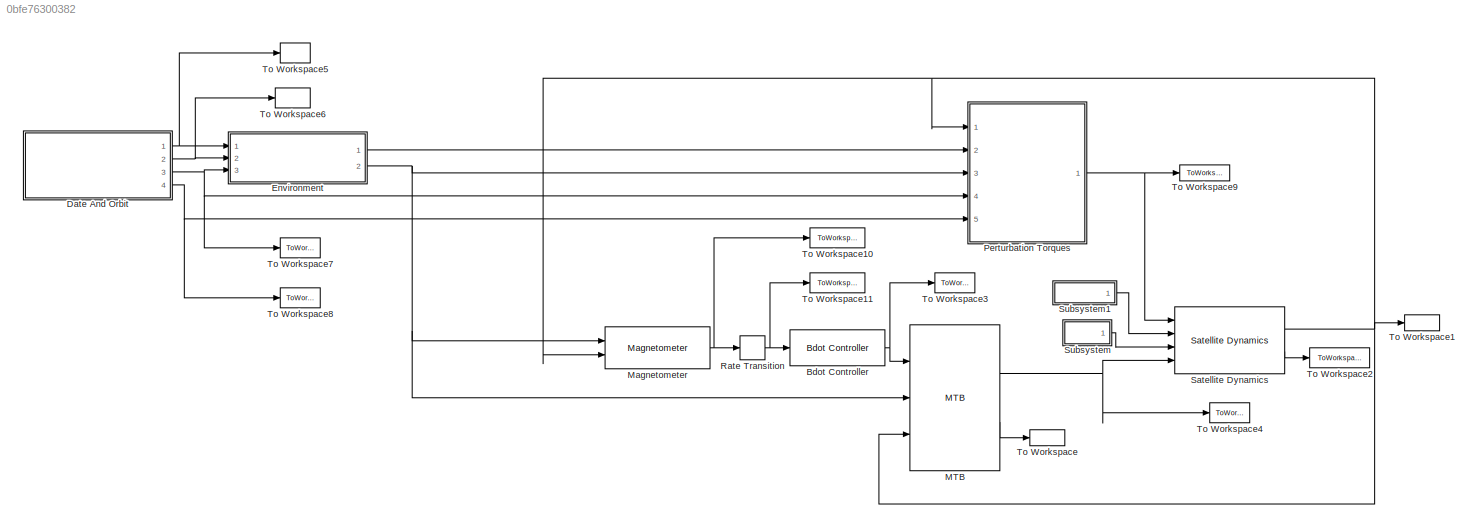
MODEL slx_0bfe76300382
KIND model
BLOCK [Reference] Bdot Controller  REF=BdotController/Bdot Controller
  Ports = [1, 1]
  SourceBlock = BdotController/Bdot Controller
  SourceType = SubSystem
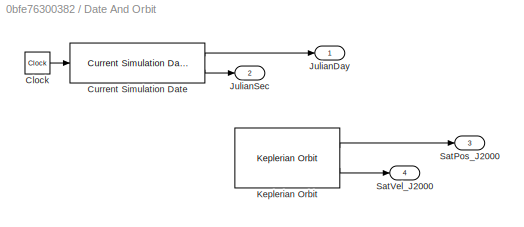
BLOCK [SubSystem] Date And Orbit
  Ports = [0, 4]
  RequestExecContextInheritance = off
BLOCK [Clock] Date And Orbit/Clock
  Decimation = 1/ConfParam.confOrbit.dt
BLOCK [Reference] Date And Orbit/Current Simulation Date  REF=Date/Current Simulation Date
  Ports = [1, 2]
  SourceBlock = Date/Current Simulation Date
  SourceType = SubSystem
BLOCK [Outport] Date And Orbit/JulianDay
  IconDisplay = Port number
BLOCK [Outport] Date And Orbit/JulianSec
  IconDisplay = Port number
  Port = 2
BLOCK [Reference] Date And Orbit/Keplerian Orbit  REF=KepOrbit/Keplerian Orbit
  Ports = [0, 2]
  SourceBlock = KepOrbit/Keplerian Orbit
  SourceType = SubSystem
BLOCK [Outport] Date And Orbit/SatPos_J2000
  IconDisplay = Port number
  Port = 3
BLOCK [Outport] Date And Orbit/SatVel_J2000
  IconDisplay = Port number
  Port = 4
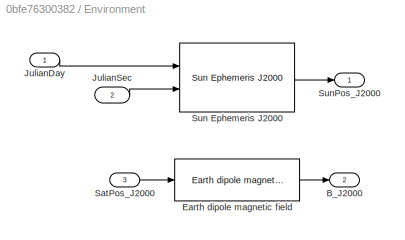
BLOCK [SubSystem] Environment
  Ports = [3, 2]
  RequestExecContextInheritance = off
BLOCK [Outport] Environment/B_J2000
  IconDisplay = Port number
  Port = 2
BLOCK [Reference] Environment/Earth dipole magnetic field  REF=DipoleField/Earth dipole magnetic field
  Ports = [1, 1]
  SourceBlock = DipoleField/Earth dipole magnetic field
  SourceType = SubSystem
BLOCK [Inport] Environment/JulianDay
  IconDisplay = Port number
BLOCK [Inport] Environment/JulianSec
  IconDisplay = Port number
  Port = 2
BLOCK [Inport] Environment/SatPos_J2000
  IconDisplay = Port number
  Port = 3
BLOCK [Reference] Environment/Sun Ephemeris J2000  REF=SunEphemeris_MathWorks/Sun Ephemeris J2000
  Ports = [2, 1]
  SourceBlock = SunEphemeris_MathWorks/Sun Ephemeris J2000
  SourceType = SubSystem
BLOCK [Outport] Environment/SunPos_J2000
  IconDisplay = Port number
BLOCK [Reference] MTB  REF=MTB/MTB
  Ports = [3, 2]
  SourceBlock = MTB/MTB
  SourceType = SubSystem
BLOCK [Reference] Magnetometer  REF=Magnetometer/Magnetometer
  Ports = [2, 1]
  SourceBlock = Magnetometer/Magnetometer
  SourceType = SubSystem
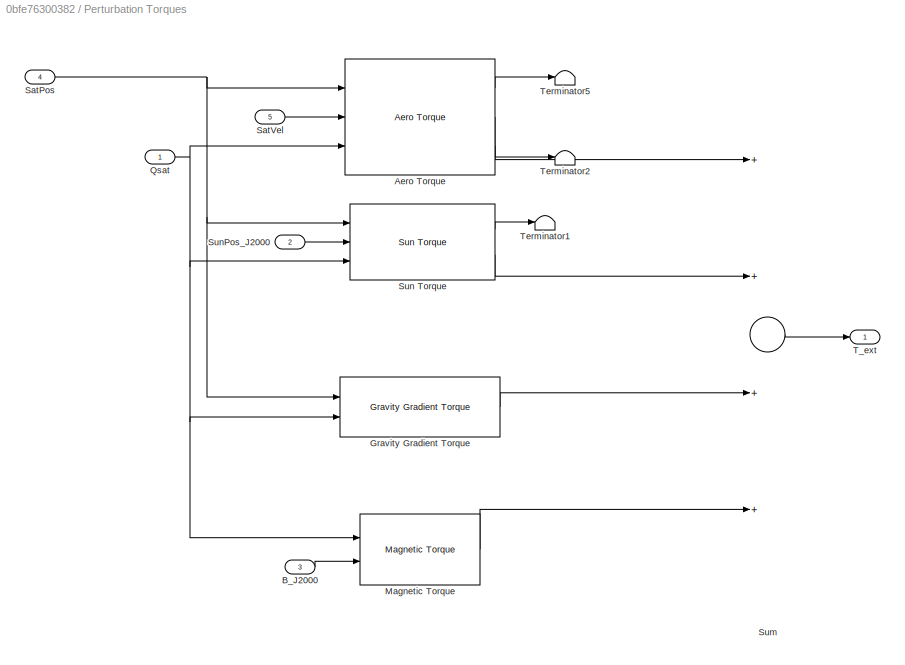
BLOCK [SubSystem] Perturbation Torques
  Ports = [5, 1]
  RequestExecContextInheritance = off
BLOCK [Reference] Perturbation Torques/Aero Torque  REF=AeroTorqueA/Aero Torque
  Ports = [3, 3]
  SourceBlock = AeroTorqueA/Aero Torque
  SourceType = SubSystem
BLOCK [Inport] Perturbation Torques/B_J2000
  IconDisplay = Port number
  Port = 3
BLOCK [Reference] Perturbation Torques/Gravity Gradient Torque  REF=GravGradTorque/Gravity Gradient Torque
  Ports = [2, 1]
  SourceBlock = GravGradTorque/Gravity Gradient Torque
  SourceType = SubSystem
BLOCK [Reference] Perturbation Torques/Magnetic Torque  REF=MagnTorque/Magnetic Torque
  Ports = [2, 1]
  SourceBlock = MagnTorque/Magnetic Torque
  SourceType = SubSystem
BLOCK [Inport] Perturbation Torques/Qsat
  IconDisplay = Port number
BLOCK [Inport] Perturbation Torques/SatPos
  IconDisplay = Port number
  Port = 4
BLOCK [Inport] Perturbation Torques/SatVel
  IconDisplay = Port number
  Port = 5
BLOCK [Sum] Perturbation Torques/Sum
  InputSameDT = off
  Inputs = ++++
  OutDataTypeStr = Inherit: Inherit via internal rule
  Ports = [4, 1]
  SaturateOnIntegerOverflow = off
BLOCK [Reference] Perturbation Torques/Sun Torque  REF=SunTorqueA/Sun Torque
  Ports = [3, 2]
  SourceBlock = SunTorqueA/Sun Torque
  SourceType = SubSystem
BLOCK [Inport] Perturbation Torques/SunPos_J2000
  IconDisplay = Port number
  Port = 2
BLOCK [Outport] Perturbation Torques/T_ext
  IconDisplay = Port number
BLOCK [Terminator] Perturbation Torques/Terminator1
BLOCK [Terminator] Perturbation Torques/Terminator2
BLOCK [Terminator] Perturbation Torques/Terminator5
BLOCK [RateTransition] Rate Transition
  OutPortSampleTime = 1/ConfParam.confES.frequency
  X0 = [0;0;0]
BLOCK [Reference] Satellite Dynamics  REF=SatDyn/Satellite Dynamics
  Ports = [4, 2]
  SourceBlock = SatDyn/Satellite Dynamics
  SourceType = SubSystem
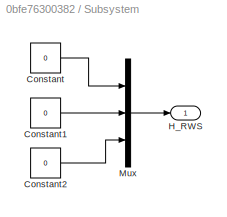
BLOCK [SubSystem] Subsystem
  Ports = [0, 1]
  RequestExecContextInheritance = off
BLOCK [Constant] Subsystem/Constant
  Value = 0
BLOCK [Constant] Subsystem/Constant1
  Value = 0
BLOCK [Constant] Subsystem/Constant2
  Value = 0
BLOCK [Outport] Subsystem/H_RWS
  IconDisplay = Port number
BLOCK [Mux] Subsystem/Mux
  DisplayOption = bar
  Inputs = 3
  Ports = [3, 1]
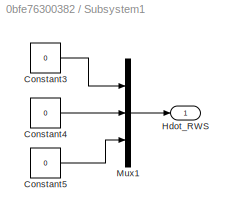
BLOCK [SubSystem] Subsystem1
  Ports = [0, 1]
  RequestExecContextInheritance = off
BLOCK [Constant] Subsystem1/Constant3
  Value = 0
BLOCK [Constant] Subsystem1/Constant4
  Value = 0
BLOCK [Constant] Subsystem1/Constant5
  Value = 0
BLOCK [Outport] Subsystem1/Hdot_RWS
  IconDisplay = Port number
BLOCK [Mux] Subsystem1/Mux1
  DisplayOption = bar
  Inputs = 3
  Ports = [3, 1]
BLOCK [ToWorkspace] To Workspace
  FixptAsFi = on
  MaxDataPoints = inf
  Ports = [1]
  SampleTime = -1
  Save2DSignal = 3-D array (concatenate along third dimension)
  SaveFormat = Timeseries
  VariableName = M
BLOCK [ToWorkspace] To Workspace1
  FixptAsFi = on
  MaxDataPoints = inf
  Ports = [1]
  SampleTime = -1
  Save2DSignal = 3-D array (concatenate along third dimension)
  SaveFormat = Timeseries
  VariableName = Qsat
BLOCK [ToWorkspace] To Workspace10
  FixptAsFi = on
  MaxDataPoints = inf
  Ports = [1]
  SampleTime = -1
  Save2DSignal = 3-D array (concatenate along third dimension)
  SaveFormat = Timeseries
  VariableName = Bmes_sat
BLOCK [ToWorkspace] To Workspace11
  FixptAsFi = on
  MaxDataPoints = inf
  Ports = [1]
  SampleTime = -1
  Save2DSignal = 3-D array (concatenate along third dimension)
  SaveFormat = Timeseries
  VariableName = Bmes_sat1
BLOCK [ToWorkspace] To Workspace2
  FixptAsFi = on
  MaxDataPoints = inf
  Ports = [1]
  SampleTime = -1
  Save2DSignal = 3-D array (concatenate along third dimension)
  SaveFormat = Timeseries
  VariableName = OmegaSat
BLOCK [ToWorkspace] To Workspace3
  FixptAsFi = on
  MaxDataPoints = inf
  Ports = [1]
  SampleTime = -1
  Save2DSignal = 3-D array (concatenate along third dimension)
  SaveFormat = Timeseries
  VariableName = Mcom
BLOCK [ToWorkspace] To Workspace4
  FixptAsFi = on
  MaxDataPoints = inf
  Ports = [1]
  SampleTime = -1
  Save2DSignal = 3-D array (concatenate along third dimension)
  SaveFormat = Timeseries
  VariableName = T_MTB
BLOCK [ToWorkspace] To Workspace5
  FixptAsFi = on
  MaxDataPoints = inf
  Ports = [1]
  SampleTime = -1
  Save2DSignal = 3-D array (concatenate along third dimension)
  SaveFormat = Timeseries
  VariableName = JD
BLOCK [ToWorkspace] To Workspace6
  FixptAsFi = on
  MaxDataPoints = inf
  Ports = [1]
  SampleTime = -1
  Save2DSignal = 3-D array (concatenate along third dimension)
  SaveFormat = Timeseries
  VariableName = JS
BLOCK [ToWorkspace] To Workspace7
  FixptAsFi = on
  MaxDataPoints = inf
  Ports = [1]
  SampleTime = -1
  Save2DSignal = 3-D array (concatenate along third dimension)
  SaveFormat = Timeseries
  VariableName = SatPos
BLOCK [ToWorkspace] To Workspace8
  FixptAsFi = on
  MaxDataPoints = inf
  Ports = [1]
  SampleTime = -1
  Save2DSignal = 3-D array (concatenate along third dimension)
  SaveFormat = Timeseries
  VariableName = SatVel
BLOCK [ToWorkspace] To Workspace9
  FixptAsFi = on
  MaxDataPoints = inf
  Ports = [1]
  SampleTime = -1
  Save2DSignal = 3-D array (concatenate along third dimension)
  SaveFormat = Timeseries
  VariableName = T_ext
NET Bdot Controller:1 -> MTB:1, To Workspace3:1
LINE Date And Orbit/Clock:1 -> Date And Orbit/Current Simulation Date:1
LINE Date And Orbit/Current Simulation Date:1 -> Date And Orbit/JulianDay:1
LINE Date And Orbit/Current Simulation Date:2 -> Date And Orbit/JulianSec:1
LINE Date And Orbit/Keplerian Orbit:1 -> Date And Orbit/SatPos_J2000:1
LINE Date And Orbit/Keplerian Orbit:2 -> Date And Orbit/SatVel_J2000:1
NET Date And Orbit:1 -> Environment:1, To Workspace5:1
NET Date And Orbit:2 -> Environment:2, To Workspace6:1
NET Date And Orbit:3 -> Environment:3, Perturbation Torques:4, To Workspace7:1
NET Date And Orbit:4 -> Perturbation Torques:5, To Workspace8:1
LINE Environment/Earth dipole magnetic field:1 -> Environment/B_J2000:1
LINE Environment/JulianDay:1 -> Environment/Sun Ephemeris J2000:1
LINE Environment/JulianSec:1 -> Environment/Sun Ephemeris J2000:2
LINE Environment/SatPos_J2000:1 -> Environment/Earth dipole magnetic field:1
LINE Environment/Sun Ephemeris J2000:1 -> Environment/SunPos_J2000:1
LINE Environment:1 -> Perturbation Torques:2
NET Environment:2 -> MTB:2, Magnetometer:1, Perturbation Torques:3
NET MTB:1 -> Satellite Dynamics:4, To Workspace4:1
LINE MTB:2 -> To Workspace:1
NET Magnetometer:1 -> Rate Transition:1, To Workspace10:1
LINE Perturbation Torques/Aero Torque:1 -> Perturbation Torques/Terminator5:1
LINE Perturbation Torques/Aero Torque:2 -> Perturbation Torques/Sum:1
LINE Perturbation Torques/Aero Torque:3 -> Perturbation Torques/Terminator2:1
LINE Perturbation Torques/B_J2000:1 -> Perturbation Torques/Magnetic Torque:2
LINE Perturbation Torques/Gravity Gradient Torque:1 -> Perturbation Torques/Sum:3
LINE Perturbation Torques/Magnetic Torque:1 -> Perturbation Torques/Sum:4
NET Perturbation Torques/Qsat:1 -> Perturbation Torques/Aero Torque:3, Perturbation Torques/Gravity Gradient Torque:2, Perturbation Torques/Magnetic Torque:1, Perturbation Torques/Sun Torque:3
NET Perturbation Torques/SatPos:1 -> Perturbation Torques/Aero Torque:1, Perturbation Torques/Gravity Gradient Torque:1, Perturbation Torques/Sun Torque:1
LINE Perturbation Torques/SatVel:1 -> Perturbation Torques/Aero Torque:2
LINE Perturbation Torques/Sum:1 -> Perturbation Torques/T_ext:1
LINE Perturbation Torques/Sun Torque:1 -> Perturbation Torques/Terminator1:1
LINE Perturbation Torques/Sun Torque:2 -> Perturbation Torques/Sum:2
LINE Perturbation Torques/SunPos_J2000:1 -> Perturbation Torques/Sun Torque:2
NET Perturbation Torques:1 -> Satellite Dynamics:1, To Workspace9:1
NET Rate Transition:1 -> Bdot Controller:1, To Workspace11:1
NET Satellite Dynamics:1 -> MTB:3, Magnetometer:2, Perturbation Torques:1, To Workspace1:1
LINE Satellite Dynamics:2 -> To Workspace2:1
LINE Subsystem/Constant1:1 -> Subsystem/Mux:2
LINE Subsystem/Constant2:1 -> Subsystem/Mux:3
LINE Subsystem/Constant:1 -> Subsystem/Mux:1
LINE Subsystem/Mux:1 -> Subsystem/H_RWS:1
LINE Subsystem1/Constant3:1 -> Subsystem1/Mux1:1
LINE Subsystem1/Constant4:1 -> Subsystem1/Mux1:2
LINE Subsystem1/Constant5:1 -> Subsystem1/Mux1:3
LINE Subsystem1/Mux1:1 -> Subsystem1/Hdot_RWS:1
LINE Subsystem1:1 -> Satellite Dynamics:2
LINE Subsystem:1 -> Satellite Dynamics:3
note: NET lines group one-source signal fan-out (src -> all destinations, sorted); 1:1 wires keep LINE
